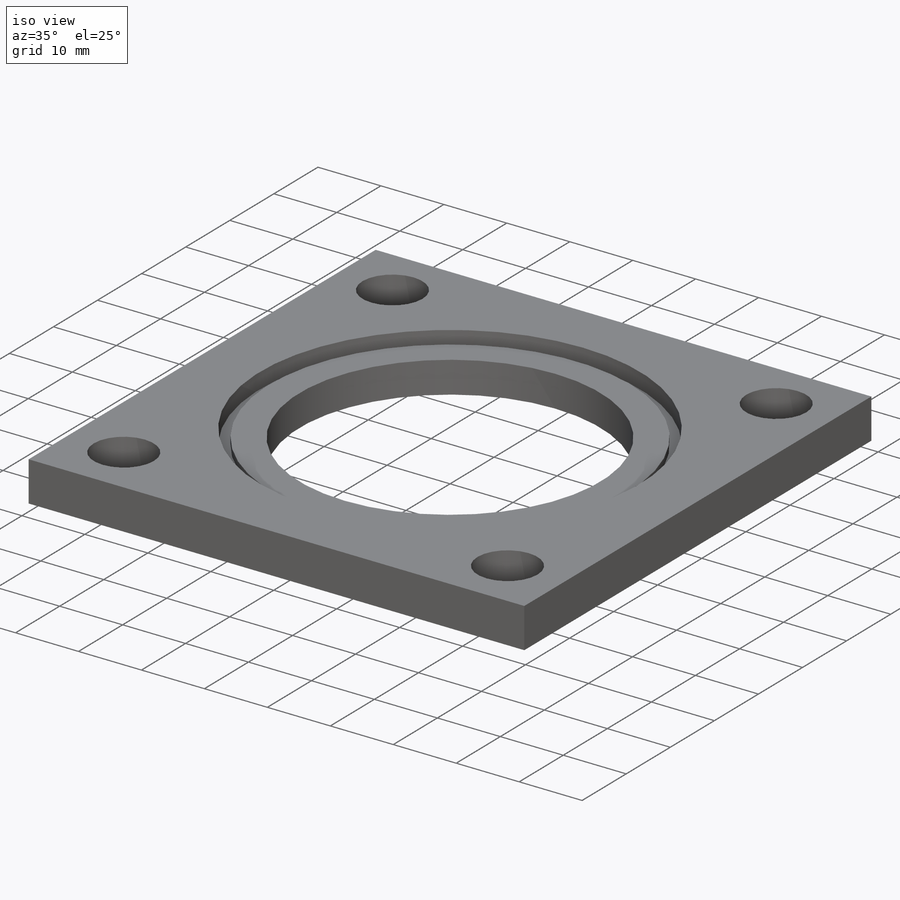
[diagram: iso view]
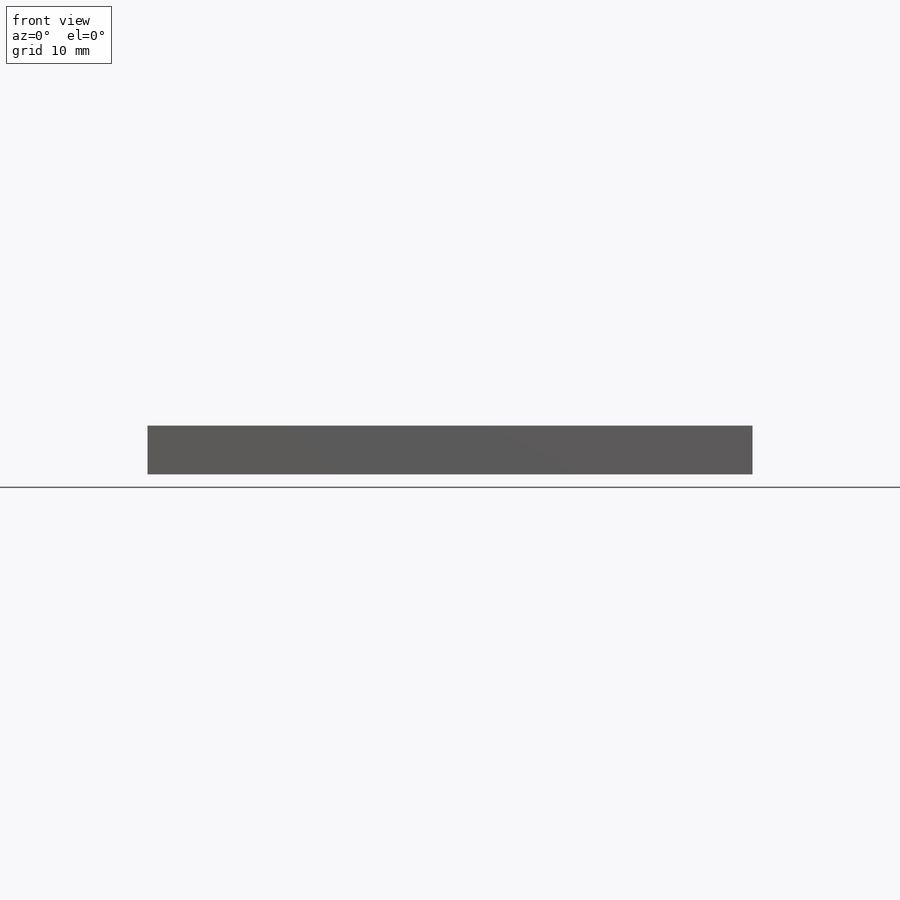
[diagram: front view]
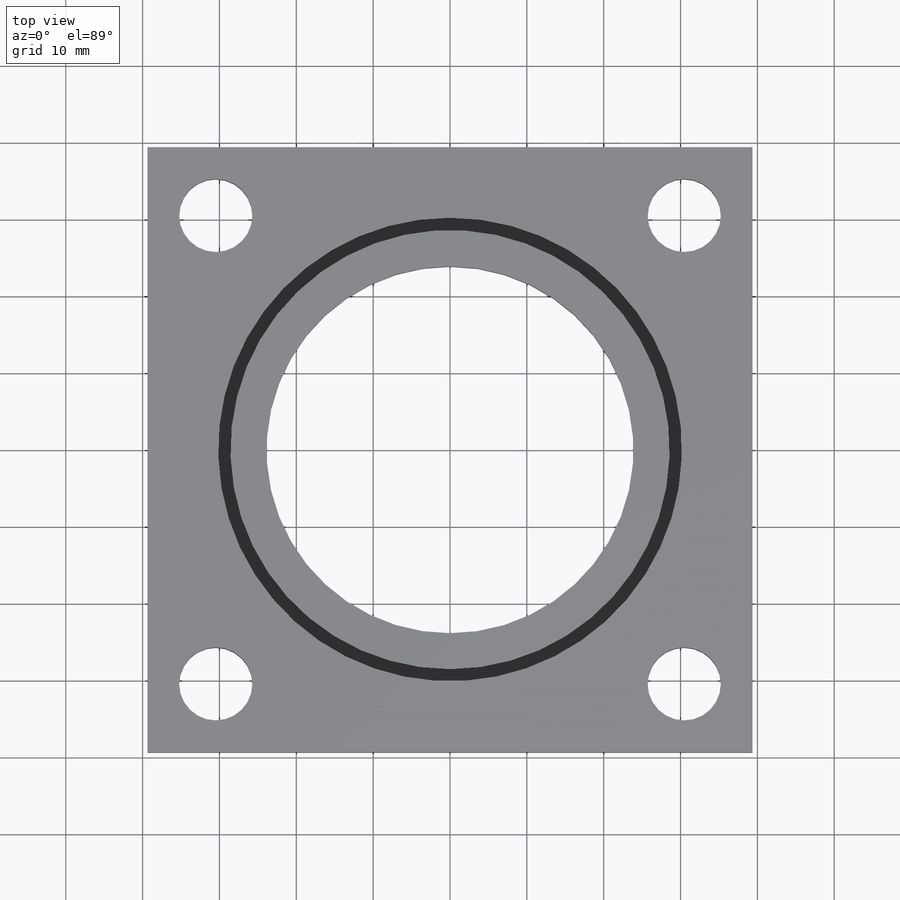
[diagram: top view]
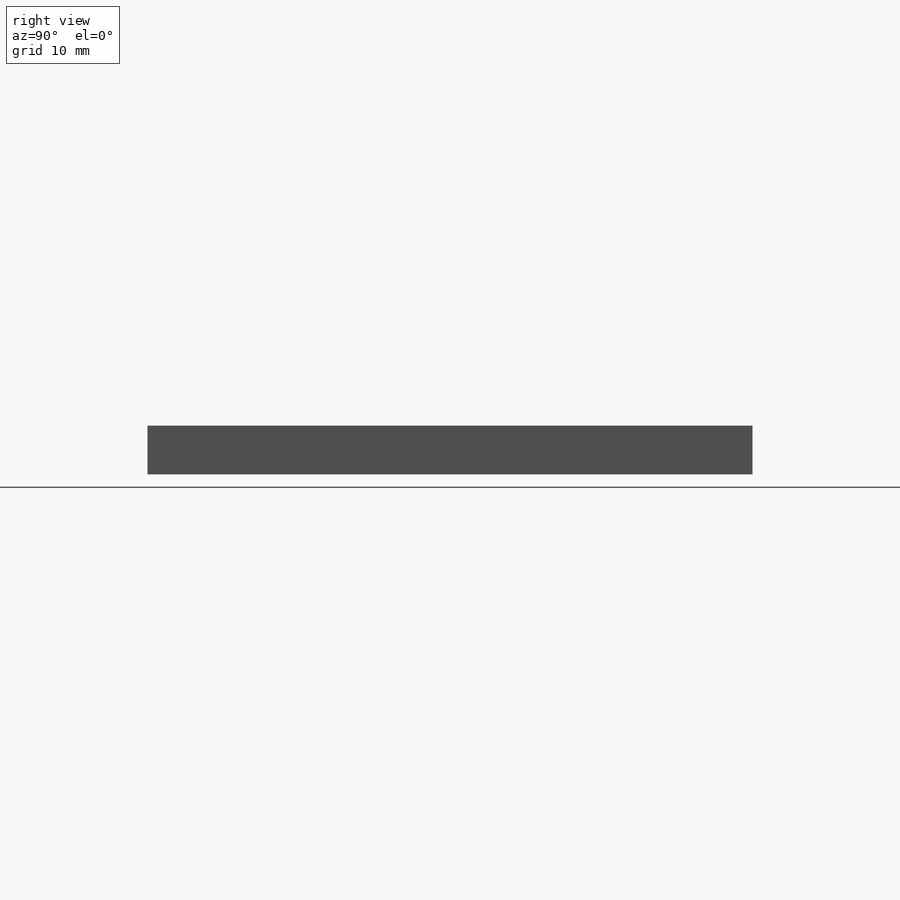
[diagram: right view]
SOLIDWORKS PART (.sldprt)
format: sldprt  version: not decoded by parser v0  size: 359,936 bytes
history: native  units: mm
features: sketch x5, cut_extrude x4, material x1, extrude x1 (+13 scaffold rows collapsed)
feature tree (24):
  scaffold x13  (default folders/planes/origin — collapsed)
  material  "Material <not specified>"
  sketch  "plateOutline"  dims[D1=78.74mm D2=80.0mm]
  sketch  "railGuides"  dims[c1.D1=19.0mm c1.D3=9.525mm c1.D4=9.525mm c1.D5=9.525mm c1.D6=9.525mm c1.D7=9.525mm c2.D1=80.01mm c2.D2=80.01mm c2.D3=~21.213203mm c2.D8=60.96mm c3.D3=9.525mm]
  sketch  "FuelGrainMounting"  dims[D1=60.325mm]
  sketch  "GasIntake"  dims[D1=11.1125mm]
  extrude  "Boss-Extrude1"  Depth=6.35mm
  cut_extrude  "Cut-Extrude1"  Depth=10mm
  cut_extrude  "Cut-Extrude2"  Depth=5mm
  cut_extrude  "Cut-Extrude3"  Depth=5mm
  sketch  "Sketch1"  dims[D1=60.325mm D2=57.15mm]
  cut_extrude  "Cut-Extrude4"  Depth=1.143mm
decode coverage: 10 of 10 modeling features carry decoded parameters
note: ~ marks probable driven/reference dimensions
note: suppression state not decoded; provenance and decode notes live in map.json
